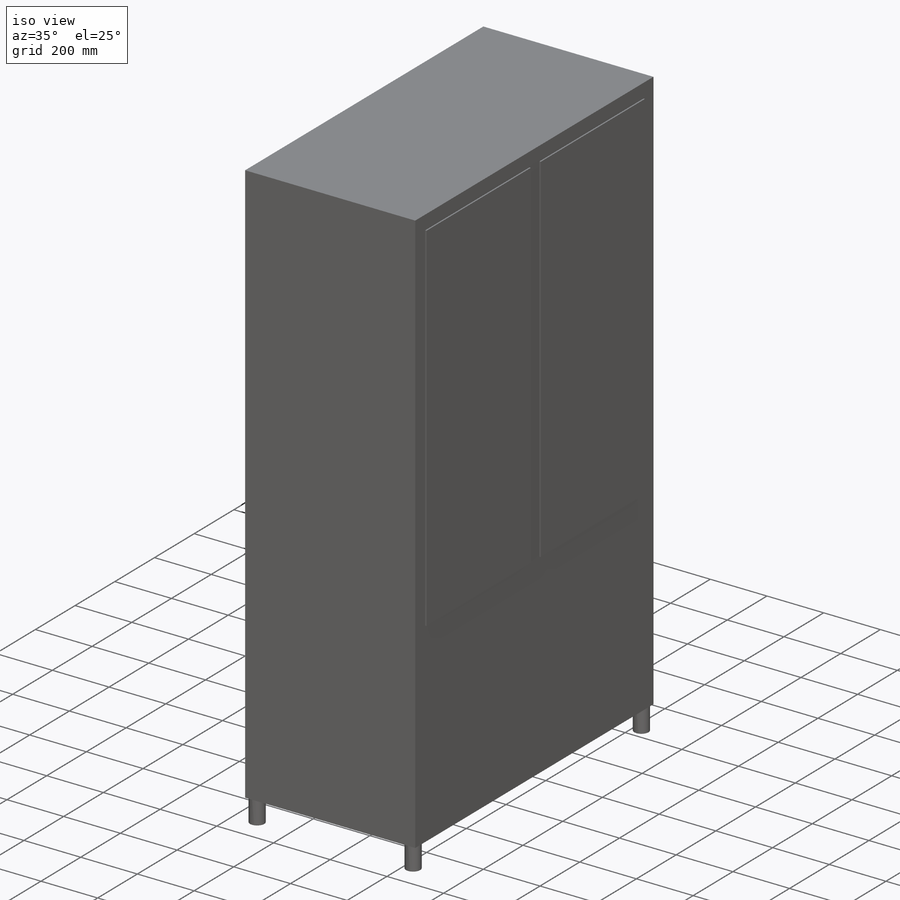
[diagram: iso view]
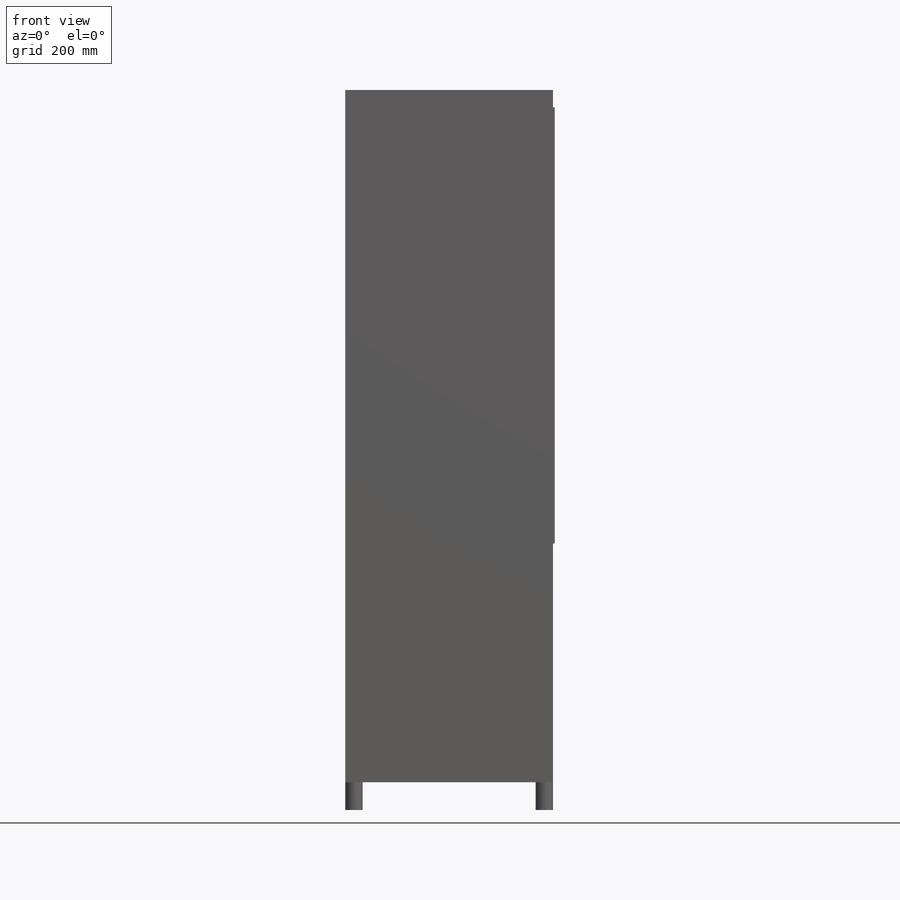
[diagram: front view]
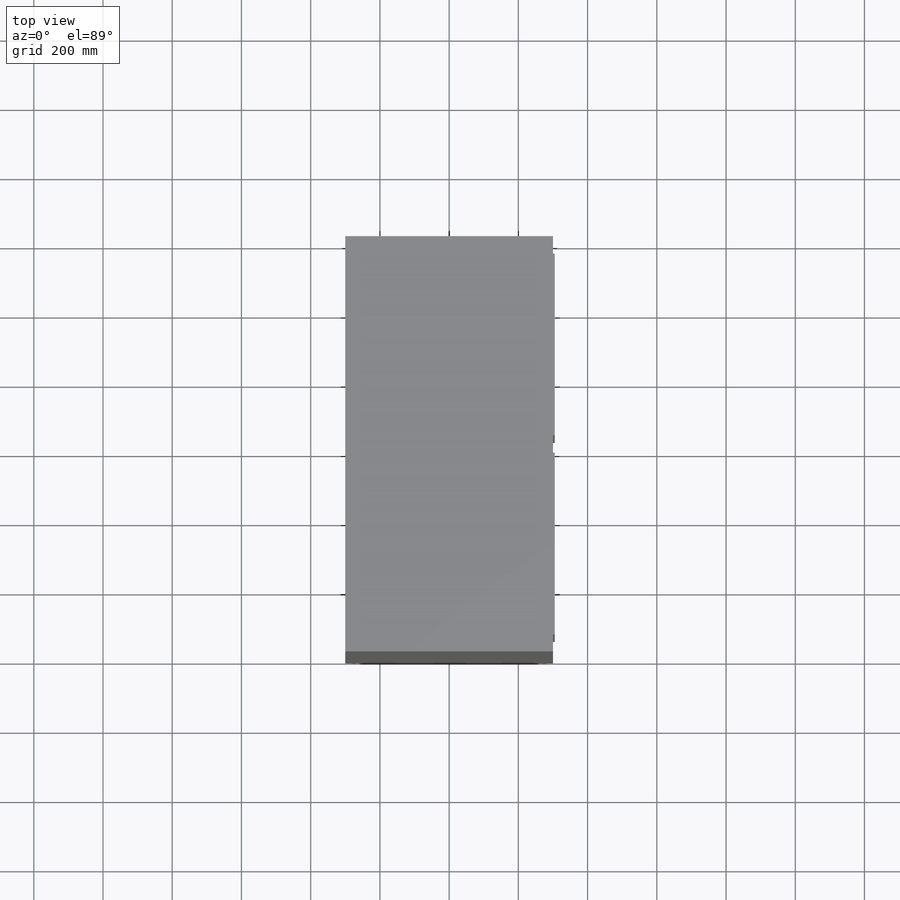
[diagram: top view]
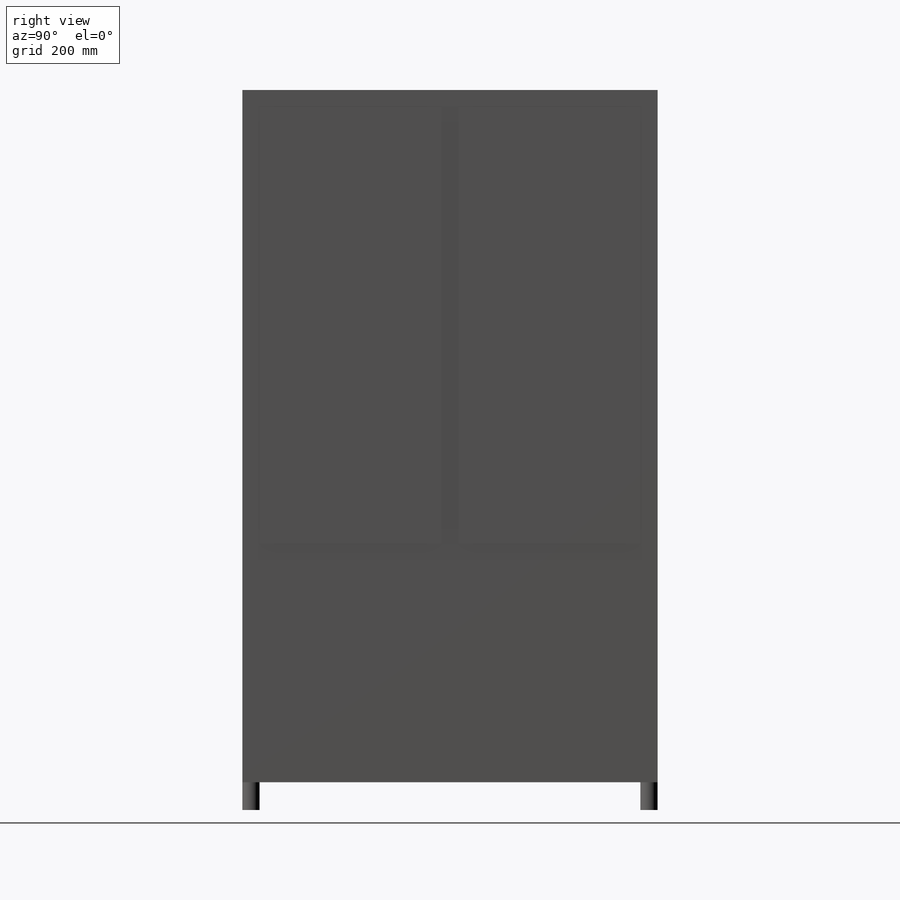
[diagram: right view]
SOLIDWORKS PART (.sldprt)
format: sldprt  version: not decoded by parser v0  size: 472,064 bytes
history: native  units: mm
features: plane x3, sketch x3, extrude x3, mirror x3, material x1 (+9 scaffold rows collapsed)
feature tree (22):
  scaffold x9  (default folders/planes/origin — collapsed)
  material  "红木"
  plane  "前视基准面"
  plane  "上视基准面"
  plane  "右视基准面"
  sketch  "草图1"  dims[c1.D1=~158.165423mm c1.D2=~70.268913mm c2.D1=600.0mm c2.D2=1200.0mm]
  extrude  "凸台-拉伸1"  Depth=2000mm
  sketch  "草图2"  dims[D1=50.0mm]
  extrude  "凸台-拉伸2"  Depth=80mm
  mirror  "镜向1"
  mirror  "镜向2"
  sketch  "草图3"  dims[D1=50.0mm D2=50.0mm D3=50.0mm D4=1260.0mm]
  extrude  "凸台-拉伸3"  Depth=5mm
  mirror  "镜向3"
decode coverage: 6 of 9 modeling features carry decoded parameters
note: ~ marks probable driven/reference dimensions
note: suppression state not decoded; provenance and decode notes live in map.json
